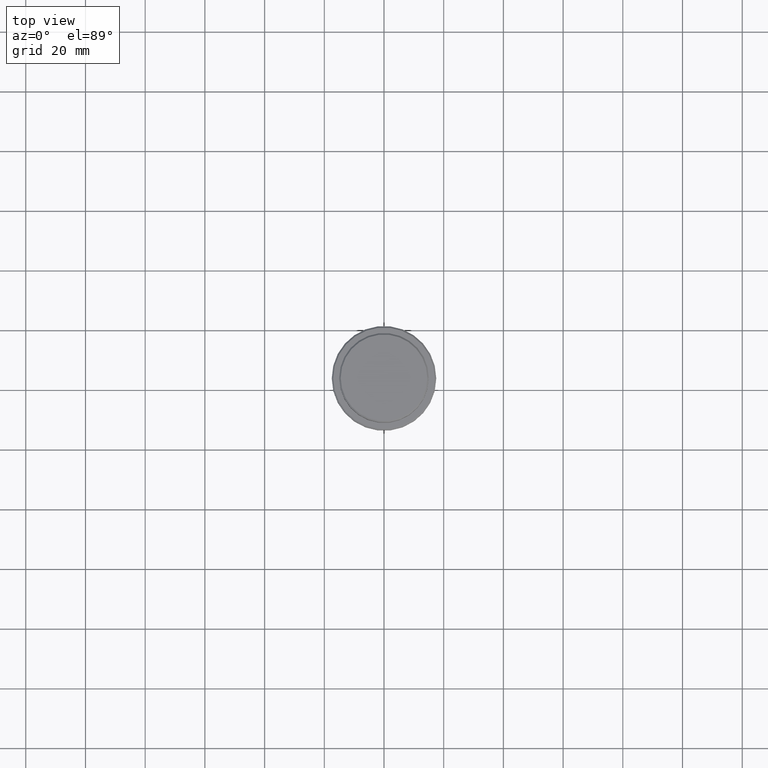
[diagram: clean part render]
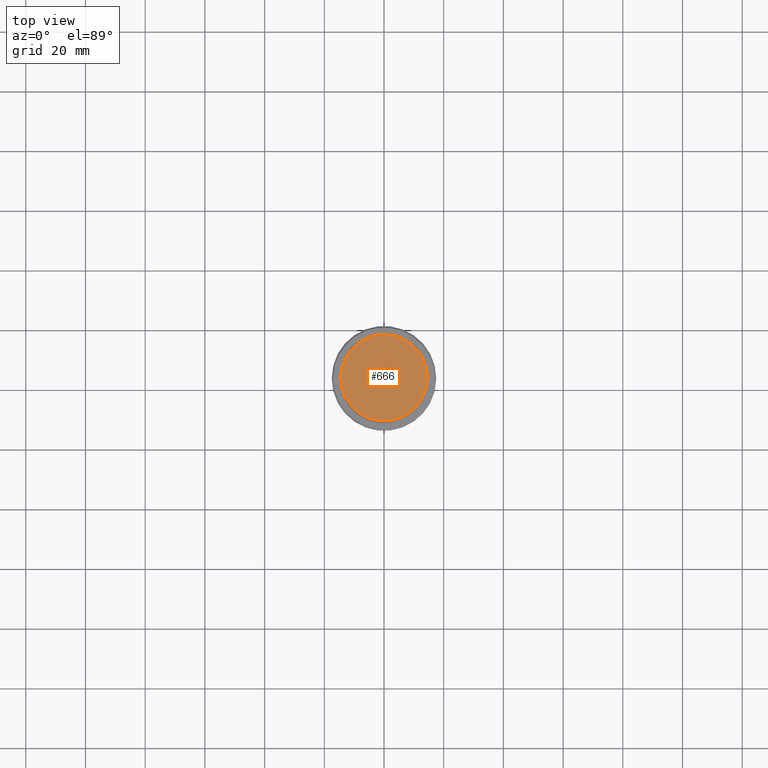
[diagram: same view with one face highlighted and labeled with its STEP entity id]
A machine part, top view. The second image highlights one B-rep face of the part: STEP entity #666.
In plain terms, the highlighted planar face has unit normal (0, -0, 1).
Its self-contained STEP definition (entity closure, byte-faithful):
#46 = CARTESIAN_POINT ( 'NONE',  ( 14.50000000000003908, 1.806354028742348168E-15, 0.000000000000000000 ) ) ;
#128 = CIRCLE ( 'NONE', #739, 14.50000000000003908 ) ;
#273 = ORIENTED_EDGE ( 'NONE', *, *, #498, .T. ) ;
#289 = AXIS2_PLACEMENT_3D ( 'NONE', #1093, #984, #1406 ) ;
#334 = AXIS2_PLACEMENT_3D ( 'NONE', #670, #682, #777 ) ;
#359 = CIRCLE ( 'NONE', #289, 14.50000000000003908 ) ;
#498 = EDGE_CURVE ( 'NONE', #1299, #1235, #128, .T. ) ;
#542 = DIRECTION ( 'NONE',  ( 1.000000000000000000, 0.000000000000000000, 0.000000000000000000 ) ) ;
#594 = EDGE_CURVE ( 'NONE', #1235, #1299, #359, .T. ) ;
#644 = CARTESIAN_POINT ( 'NONE',  ( 0.000000000000000000, 0.000000000000000000, 0.000000000000000000 ) ) ;
#666 = ADVANCED_FACE ( 'NONE', ( #888 ), #1126, .T. ) ;
#670 = CARTESIAN_POINT ( 'NONE',  ( 0.000000000000000000, 0.000000000000000000, 0.000000000000000000 ) ) ;
#682 = DIRECTION ( 'NONE',  ( 0.000000000000000000, -0.000000000000000000, 1.000000000000000000 ) ) ;
#739 = AXIS2_PLACEMENT_3D ( 'NONE', #644, #858, #542 ) ;
#777 = DIRECTION ( 'NONE',  ( 1.000000000000000000, 0.000000000000000000, 0.000000000000000000 ) ) ;
#795 = CARTESIAN_POINT ( 'NONE',  ( -14.50000000000003908, 0.000000000000000000, 0.000000000000000000 ) ) ;
#858 = DIRECTION ( 'NONE',  ( -0.000000000000000000, -0.000000000000000000, 1.000000000000000000 ) ) ;
#888 = FACE_OUTER_BOUND ( 'NONE', #1232, .T. ) ;
#984 = DIRECTION ( 'NONE',  ( -0.000000000000000000, -0.000000000000000000, 1.000000000000000000 ) ) ;
#1093 = CARTESIAN_POINT ( 'NONE',  ( 0.000000000000000000, 0.000000000000000000, 0.000000000000000000 ) ) ;
#1126 = PLANE ( 'NONE',  #334 ) ;
#1232 = EDGE_LOOP ( 'NONE', ( #1238, #273 ) ) ;
#1235 = VERTEX_POINT ( 'NONE', #795 ) ;
#1238 = ORIENTED_EDGE ( 'NONE', *, *, #594, .T. ) ;
#1299 = VERTEX_POINT ( 'NONE', #46 ) ;
#1406 = DIRECTION ( 'NONE',  ( 1.000000000000000000, 0.000000000000000000, 0.000000000000000000 ) ) ;